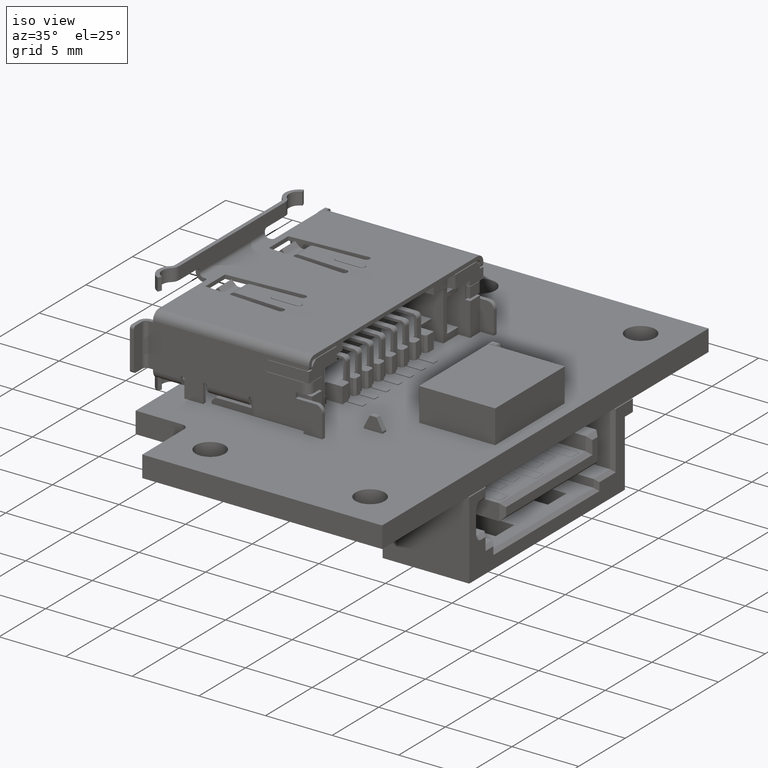
[diagram: clean part render]
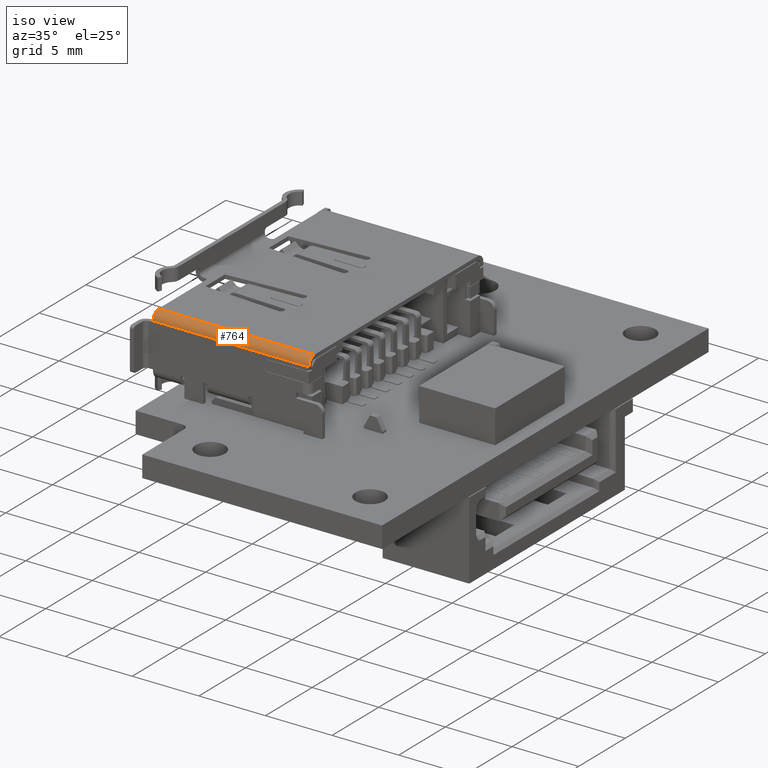
[diagram: same view with one face highlighted and labeled with its STEP entity id]
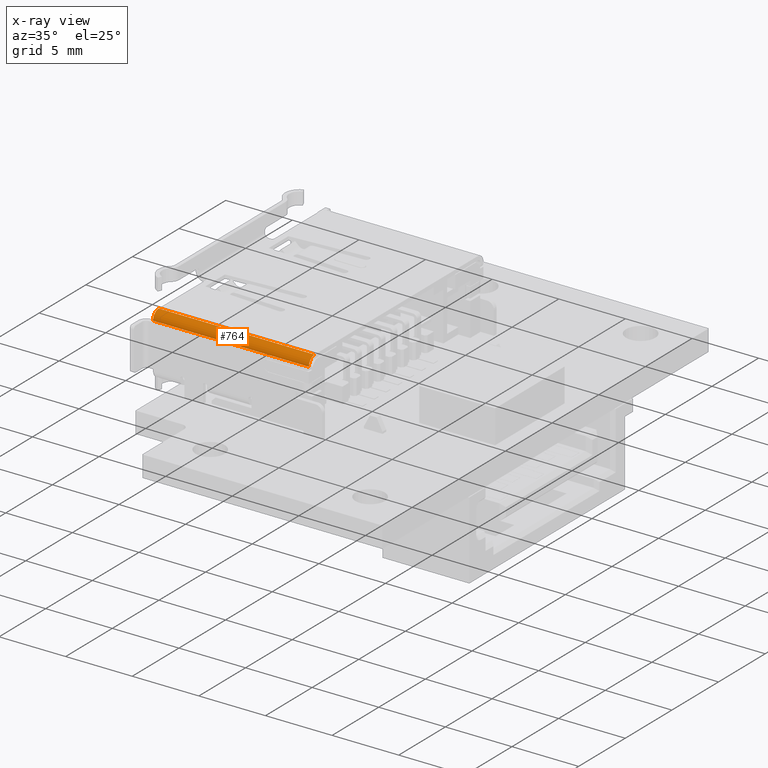
[diagram: x-ray of the same camera — body ghosted, the highlighted face saturated]
A machine part, iso view. The second image highlights one B-rep face of the part: STEP entity #764.
The next image is the same camera in x-ray: the body ghosted, the highlighted face saturated — about 0% of this face is hidden behind the body in this view.
In plain terms, the highlighted cylindrical surface (edge-blend (fillet) strip) has radius 0.6 mm, axis along (-1, 0, 0).
Its self-contained STEP definition (entity closure, byte-faithful):
#112=CYLINDRICAL_SURFACE('',#28434,0.6);
#764=ADVANCED_FACE('',(#2106),#112,.T.);
#2106=FACE_OUTER_BOUND('',#3576,.F.);
#3576=EDGE_LOOP('',(#7568,#7569,#7570,#7571));
#7568=ORIENTED_EDGE('',*,*,#15251,.T.);
#7569=ORIENTED_EDGE('',*,*,#14531,.T.);
#7570=ORIENTED_EDGE('',*,*,#14647,.T.);
#7571=ORIENTED_EDGE('',*,*,#14660,.F.);
#13621=CIRCLE('',#27618,0.6);
#13790=CIRCLE('',#27787,0.6);
#14531=EDGE_CURVE('',#26989,#26990,#18432,.T.);
#14647=EDGE_CURVE('',#26990,#26921,#13621,.T.);
#14660=EDGE_CURVE('',#26913,#26921,#18529,.T.);
#15251=EDGE_CURVE('',#26913,#26989,#13790,.T.);
#18432=LINE('',#39406,#21952);
#18529=LINE('',#39535,#22049);
#21952=VECTOR('',#29927,11.7);
#22049=VECTOR('',#30088,11.7);
#26913=VERTEX_POINT('',#38228);
#26921=VERTEX_POINT('',#38236);
#26989=VERTEX_POINT('',#38304);
#26990=VERTEX_POINT('',#38305);
#27618=AXIS2_PLACEMENT_3D('',#39522,#30070,#30071);
#27787=AXIS2_PLACEMENT_3D('',#40398,#30803,#30804);
#28434=AXIS2_PLACEMENT_3D('',#43552,#34604,#34605);
#29927=DIRECTION('',(-1.,0.,0.));
#30070=DIRECTION('',(-1.,0.,0.));
#30071=DIRECTION('',(0.,-1.,0.));
#30088=DIRECTION('',(-1.,0.,0.));
#30803=DIRECTION('',(1.,0.,0.));
#30804=DIRECTION('',(0.,0.,1.));
#34604=DIRECTION('',(-1.,0.,0.));
#34605=DIRECTION('',(0.,-0.996194698091746,-0.0871557427476569));
#38228=CARTESIAN_POINT('',(-71.2000000000126,-8.7499999999997,12.3500002321153));
#38236=CARTESIAN_POINT('',(-82.9000000000126,-8.7499999999997,12.3500002321153));
#38304=CARTESIAN_POINT('',(-71.2000000000126,-9.3499999999997,11.7500002321152));
#38305=CARTESIAN_POINT('',(-82.9000000000126,-9.3499999999997,11.7500002321152));
#39406=CARTESIAN_POINT('',(-71.2000000000126,-9.3499999999997,11.7500002321152));
#39522=CARTESIAN_POINT('',(-82.9000000000126,-8.7499999999997,11.7500002321153));
#39535=CARTESIAN_POINT('',(-71.2000000000126,-8.7499999999997,12.3500002321153));
#40398=CARTESIAN_POINT('',(-71.2000000000126,-8.7499999999997,11.7500002321153));
#43552=CARTESIAN_POINT('',(-83.4850000000126,-8.7499999999997,11.7500002321153));